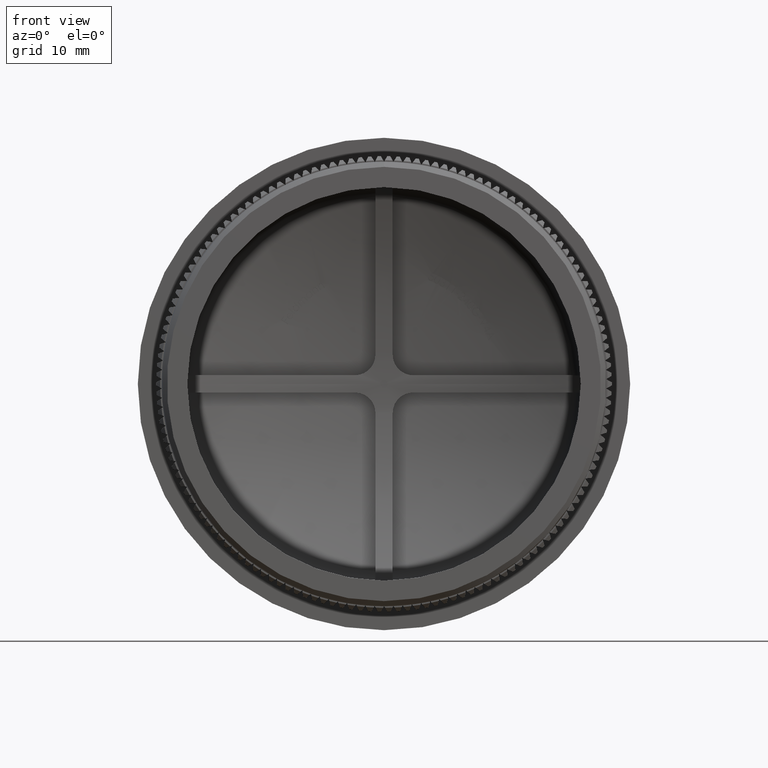
[diagram: clean part render]
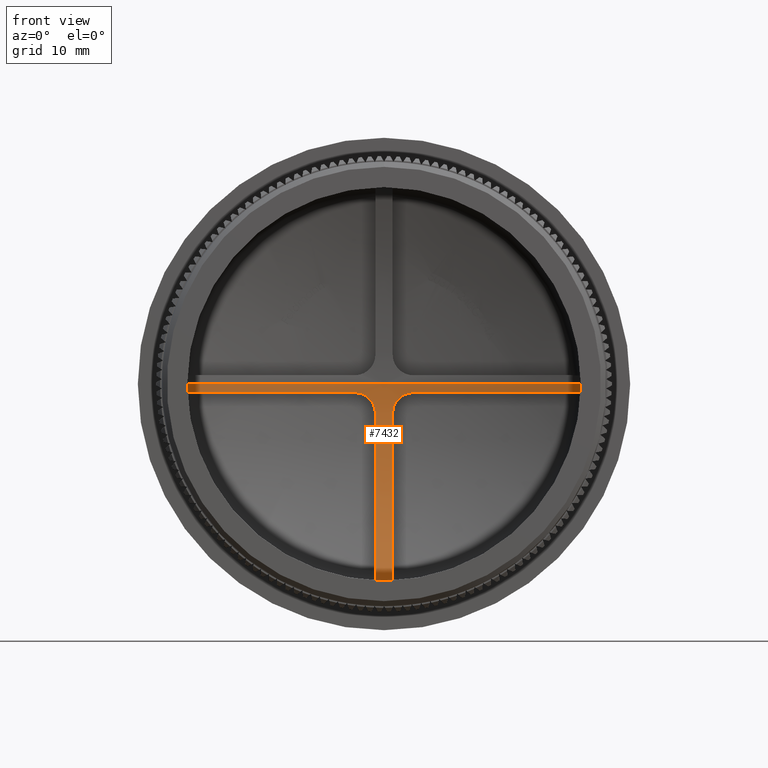
[diagram: same view with one face highlighted and labeled with its STEP entity id]
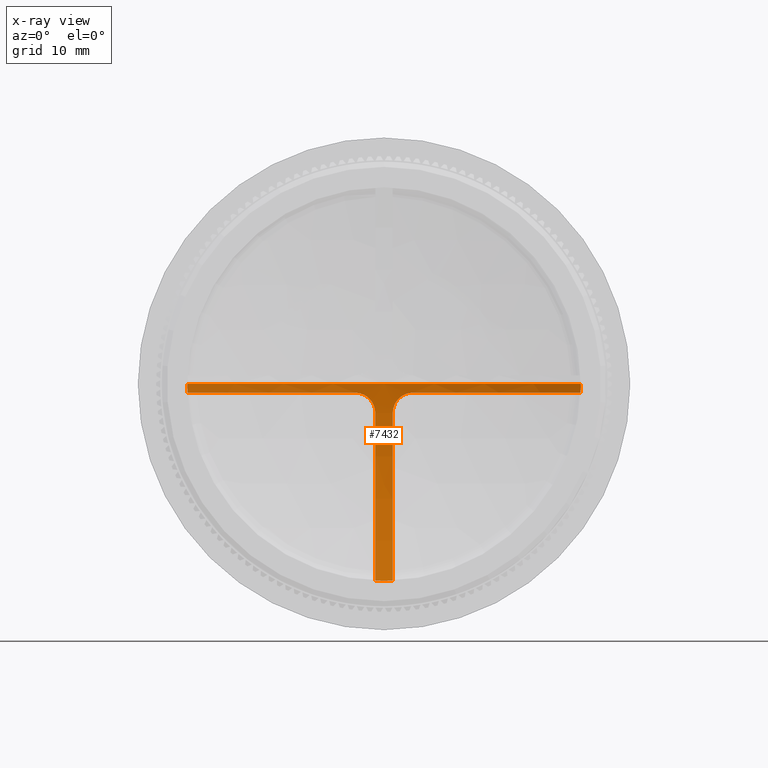
[diagram: x-ray of the same camera — body ghosted, the highlighted face saturated]
A machine part, front view. The second image highlights one B-rep face of the part: STEP entity #7432.
The next image is the same camera in x-ray: the body ghosted, the highlighted face saturated — about 0% of this face is hidden behind the body in this view.
In plain terms, the highlighted spherical surface has radius 46.0764 mm.
Its self-contained STEP definition (entity closure, byte-faithful):
#826 = CARTESIAN_POINT ( 'NONE',  ( 0.8500000000000002000, 16.87391791365100600, -2.849999999999999600 ) ) ;
#1075 = CARTESIAN_POINT ( 'NONE',  ( -0.8499999999999994200, 16.87391791365100600, -2.849999999999999200 ) ) ;
#1250 = CARTESIAN_POINT ( 'NONE',  ( -2.588367781213962300, 16.88933179402046400, -0.8629186428152267900 ) ) ;
#1402 = CARTESIAN_POINT ( 'NONE',  ( -2.333011335065106300, 16.90201252549741200, -0.9135944489061640400 ) ) ;
#1486 = DIRECTION ( 'NONE',  ( -1.000000000000000000, 0.0000000000000000000, 0.0000000000000000000 ) ) ;
#2011 = CARTESIAN_POINT ( 'NONE',  ( -2.206068287032270100, 16.90749834030023600, -0.9519693981760574100 ) ) ;
#2153 = ORIENTED_EDGE ( 'NONE', *, *, #16143, .F. ) ;
#2163 = CARTESIAN_POINT ( 'NONE',  ( -1.251705999032471300, 16.92524607816653100, -1.619731823192323400 ) ) ;
#2287 = CARTESIAN_POINT ( 'NONE',  ( -0.8500000000000014200, 16.89026799087477900, -2.586216975659840300 ) ) ;
#2323 = CARTESIAN_POINT ( 'NONE',  ( -1.631592054119581600, 16.92408516943763500, -1.258596775633193300 ) ) ;
#2332 = AXIS2_PLACEMENT_3D ( 'NONE', #41453, #38130, #7273 ) ;
#3123 = EDGE_LOOP ( 'NONE', ( #23334, #8677, #41161, #15627, #11217, #2153, #27586, #16997, #20508, #8129, #34826, #44591 ) ) ;
#3237 = DIRECTION ( 'NONE',  ( 0.0000000000000000000, 0.0000000000000000000, -1.000000000000000000 ) ) ;
#3243 = CARTESIAN_POINT ( 'NONE',  ( -19.28127329820309700, 12.73310967627990600, -0.8499999999999997600 ) ) ;
#4350 = DIRECTION ( 'NONE',  ( 0.0000000000000000000, 0.0000000000000000000, -1.000000000000000000 ) ) ;
#4357 = CIRCLE ( 'NONE', #21138, 19.29999999999999700 ) ;
#4366 = CARTESIAN_POINT ( 'NONE',  ( 0.8500000000000006400, 16.88209284108035400, -2.718110281586928700 ) ) ;
#4602 = CARTESIAN_POINT ( 'NONE',  ( -0.8500000000000000900, -29.10639209225696100, -1.800015980517790900E-016 ) ) ;
#4868 = EDGE_CURVE ( 'NONE', #30580, #39580, #27491, .T. ) ;
#4939 = CARTESIAN_POINT ( 'NONE',  ( 0.9135944489061647000, 16.90201252549741200, -2.333011335065104900 ) ) ;
#5290 = DIRECTION ( 'NONE',  ( -1.000000000000000000, 0.0000000000000000000, -4.706908051626165200E-018 ) ) ;
#5445 = CIRCLE ( 'NONE', #28983, 46.07639209225696700 ) ;
#5565 = CARTESIAN_POINT ( 'NONE',  ( 0.8500000000000002000, 16.87391791365100600, -2.849999999999999600 ) ) ;
#5700 = CARTESIAN_POINT ( 'NONE',  ( 19.29999999999999700, 12.73310967627991300, -2.363568322354391400E-015 ) ) ;
#5701 = VERTEX_POINT ( 'NONE', #40291 ) ;
#6267 = EDGE_CURVE ( 'NONE', #30862, #9776, #7905, .T. ) ;
#6316 = DIRECTION ( 'NONE',  ( -1.000000000000000000, 0.0000000000000000000, 0.0000000000000000000 ) ) ;
#6786 = DIRECTION ( 'NONE',  ( 0.0000000000000000000, 0.0000000000000000000, -1.000000000000000000 ) ) ;
#7091 = AXIS2_PLACEMENT_3D ( 'NONE', #42317, #21556, #4350 ) ;
#7273 = DIRECTION ( 'NONE',  ( 1.000000000000000000, 0.0000000000000000000, 0.0000000000000000000 ) ) ;
#7432 = ADVANCED_FACE ( 'NONE', ( #10694 ), #25256, .F. ) ;
#7885 = CARTESIAN_POINT ( 'NONE',  ( 1.113564122289354000, 16.91959982699221100, -1.849064144058734100 ) ) ;
#7905 = B_SPLINE_CURVE_WITH_KNOTS ( 'NONE', 3,
 ( #15079, #21991, #1250, #1402, #2011, #9050, #33085, #2323, #36610, #2163, #19565, #9643, #2287, #10352 ),
 .UNSPECIFIED., .F., .F.,
 ( 4, 2, 2, 2, 2, 2, 4 ),
 ( 0.0000000000000000000, 0.0003908182569358285400, 0.0007816365138716570800, 0.001172454770807485800, 0.001563273027743314600, 0.002344909541614971700, 0.003126546055486628300 ),
 .UNSPECIFIED. ) ;
#8129 = ORIENTED_EDGE ( 'NONE', *, *, #42368, .T. ) ;
#8464 = CARTESIAN_POINT ( 'NONE',  ( 0.9519693981760573000, 16.90749834030023300, -2.206068287032267900 ) ) ;
#8601 = CARTESIAN_POINT ( 'NONE',  ( 2.850000000000000100, 16.87391791365100600, -0.8499999999999998700 ) ) ;
#8677 = ORIENTED_EDGE ( 'NONE', *, *, #11410, .T. ) ;
#8964 = CIRCLE ( 'NONE', #40654, 46.06855118450546600 ) ;
#9050 = CARTESIAN_POINT ( 'NONE',  ( -1.963940808817204100, 16.91628598247666600, -1.052204870919325500 ) ) ;
#9643 = CARTESIAN_POINT ( 'NONE',  ( -0.9029516258031554700, 16.90323864854717300, -2.323866490162558800 ) ) ;
#9776 = VERTEX_POINT ( 'NONE', #1075 ) ;
#10352 = CARTESIAN_POINT ( 'NONE',  ( -0.8499999999999994200, 16.87391791365100600, -2.849999999999999200 ) ) ;
#10694 = FACE_OUTER_BOUND ( 'NONE', #3123, .T. ) ;
#11217 = ORIENTED_EDGE ( 'NONE', *, *, #6267, .T. ) ;
#11354 = CARTESIAN_POINT ( 'NONE',  ( 1.258596775633193100, 16.92408516943763200, -1.631592054119579000 ) ) ;
#11410 = EDGE_CURVE ( 'NONE', #42463, #24757, #39482, .T. ) ;
#11810 = AXIS2_PLACEMENT_3D ( 'NONE', #25483, #32358, #36303 ) ;
#12116 = EDGE_CURVE ( 'NONE', #42463, #20731, #5445, .T. ) ;
#12385 = CARTESIAN_POINT ( 'NONE',  ( 1.842828675561848600, 16.92066584029282700, -1.102596278799330000 ) ) ;
#13047 = EDGE_CURVE ( 'NONE', #39886, #39580, #19984, .T. ) ;
#13181 = VERTEX_POINT ( 'NONE', #15505 ) ;
#13566 = CARTESIAN_POINT ( 'NONE',  ( 0.0000000000000000000, 12.73310967627991300, 0.0000000000000000000 ) ) ;
#14795 = CARTESIAN_POINT ( 'NONE',  ( 1.619731823192323400, 16.92524607816652700, -1.251705999032469000 ) ) ;
#14800 = CIRCLE ( 'NONE', #35524, 19.29999999999999700 ) ;
#15079 = CARTESIAN_POINT ( 'NONE',  ( -2.850000000000001900, 16.87391791365100600, -0.8499999999999997600 ) ) ;
#15505 = CARTESIAN_POINT ( 'NONE',  ( 19.28127329820309700, 12.73310967627991300, -0.8499999999999997600 ) ) ;
#15627 = ORIENTED_EDGE ( 'NONE', *, *, #26780, .F. ) ;
#16143 = EDGE_CURVE ( 'NONE', #32222, #9776, #36024, .T. ) ;
#16997 = ORIENTED_EDGE ( 'NONE', *, *, #13047, .T. ) ;
#18493 = DIRECTION ( 'NONE',  ( 1.000000000000000000, 0.0000000000000000000, 2.117665859432695400E-016 ) ) ;
#19414 = B_SPLINE_CURVE_WITH_KNOTS ( 'NONE', 3,
 ( #826, #4366, #28501, #4939, #8464, #38734, #7885, #11354, #35411, #14795, #12385, #22428, #36463, #8601 ),
 .UNSPECIFIED., .F., .F.,
 ( 4, 2, 2, 2, 2, 2, 4 ),
 ( 0.0000000000000000000, 0.0003908182569358287600, 0.0007816365138716575200, 0.001172454770807485800, 0.001563273027743314600, 0.002344909541614971700, 0.003126546055486629200 ),
 .UNSPECIFIED. ) ;
#19565 = CARTESIAN_POINT ( 'NONE',  ( -1.102596278799332600, 16.92066584029282700, -1.842828675561848400 ) ) ;
#19898 = DIRECTION ( 'NONE',  ( -0.0000000000000000000, -0.0000000000000000000, 1.000000000000000000 ) ) ;
#19984 = CIRCLE ( 'NONE', #7091, 19.29999999999999700 ) ;
#20041 = CARTESIAN_POINT ( 'NONE',  ( -2.821365304602045700E-015, 16.97000000000000600, 0.0000000000000000000 ) ) ;
#20508 = ORIENTED_EDGE ( 'NONE', *, *, #4868, .F. ) ;
#20731 = VERTEX_POINT ( 'NONE', #5700 ) ;
#20741 = AXIS2_PLACEMENT_3D ( 'NONE', #42835, #22208, #1486 ) ;
#20854 = VERTEX_POINT ( 'NONE', #3243 ) ;
#21138 = AXIS2_PLACEMENT_3D ( 'NONE', #42863, #29019, #38977 ) ;
#21556 = DIRECTION ( 'NONE',  ( -0.0000000000000000000, -1.000000000000000000, -0.0000000000000000000 ) ) ;
#21991 = CARTESIAN_POINT ( 'NONE',  ( -2.718110281586929100, 16.88209284108035000, -0.8499999999999997600 ) ) ;
#22208 = DIRECTION ( 'NONE',  ( -0.0000000000000000000, -0.0000000000000000000, -1.000000000000000000 ) ) ;
#22428 = CARTESIAN_POINT ( 'NONE',  ( 2.323866490162559200, 16.90323864854717300, -0.9029516258031525800 ) ) ;
#22471 = DIRECTION ( 'NONE',  ( -5.882405165090820600E-018, -0.0000000000000000000, 1.000000000000000000 ) ) ;
#22510 = DIRECTION ( 'NONE',  ( -1.000000000000000000, 0.0000000000000000000, 1.224646799147353200E-016 ) ) ;
#23334 = ORIENTED_EDGE ( 'NONE', *, *, #12116, .F. ) ;
#24266 = DIRECTION ( 'NONE',  ( -0.0000000000000000000, -1.000000000000000000, -0.0000000000000000000 ) ) ;
#24587 = AXIS2_PLACEMENT_3D ( 'NONE', #30873, #19898, #6316 ) ;
#24757 = VERTEX_POINT ( 'NONE', #33234 ) ;
#25256 = SPHERICAL_SURFACE ( 'NONE', #20741, 46.07639209225696700 ) ;
#25483 = CARTESIAN_POINT ( 'NONE',  ( 0.8499999999999996400, -29.10639209225696100, 1.700015092711246200E-016 ) ) ;
#26780 = EDGE_CURVE ( 'NONE', #30862, #20854, #29731, .T. ) ;
#27491 = CIRCLE ( 'NONE', #11810, 46.06855118450546600 ) ;
#27586 = ORIENTED_EDGE ( 'NONE', *, *, #27951, .T. ) ;
#27951 = EDGE_CURVE ( 'NONE', #32222, #39886, #4357, .T. ) ;
#28501 = CARTESIAN_POINT ( 'NONE',  ( 0.8629186428152273400, 16.88933179402046000, -2.588367781213959200 ) ) ;
#28983 = AXIS2_PLACEMENT_3D ( 'NONE', #39381, #39681, #22510 ) ;
#29019 = DIRECTION ( 'NONE',  ( -0.0000000000000000000, -1.000000000000000000, -0.0000000000000000000 ) ) ;
#29731 = CIRCLE ( 'NONE', #24587, 46.06855118450546600 ) ;
#30580 = VERTEX_POINT ( 'NONE', #5565 ) ;
#30775 = EDGE_CURVE ( 'NONE', #13181, #20731, #32771, .T. ) ;
#30862 = VERTEX_POINT ( 'NONE', #41419 ) ;
#30873 = CARTESIAN_POINT ( 'NONE',  ( 0.0000000000000000000, -29.10639209225696100, -0.8499999999999997600 ) ) ;
#32222 = VERTEX_POINT ( 'NONE', #33556 ) ;
#32358 = DIRECTION ( 'NONE',  ( -1.000000000000000000, -0.0000000000000000000, -2.000017756130879000E-016 ) ) ;
#32771 = CIRCLE ( 'NONE', #35994, 19.29999999999999700 ) ;
#33085 = CARTESIAN_POINT ( 'NONE',  ( -1.849064144058736800, 16.91959982699221900, -1.113564122289353800 ) ) ;
#33234 = CARTESIAN_POINT ( 'NONE',  ( -19.29999999999999700, 12.73310967627991300, 0.0000000000000000000 ) ) ;
#33556 = CARTESIAN_POINT ( 'NONE',  ( -0.8499999999999959800, 12.73310967627991300, -19.28127329820309700 ) ) ;
#34826 = ORIENTED_EDGE ( 'NONE', *, *, #35305, .F. ) ;
#35305 = EDGE_CURVE ( 'NONE', #13181, #5701, #8964, .T. ) ;
#35411 = CARTESIAN_POINT ( 'NONE',  ( 1.343036529158985000, 16.92523351802993000, -1.528604157472325500 ) ) ;
#35524 = AXIS2_PLACEMENT_3D ( 'NONE', #13566, #37346, #3237 ) ;
#35994 = AXIS2_PLACEMENT_3D ( 'NONE', #41115, #24266, #6786 ) ;
#36024 = CIRCLE ( 'NONE', #41769, 46.06855118450546600 ) ;
#36303 = DIRECTION ( 'NONE',  ( 2.000435921941120200E-016, 3.539594854822876200E-015, -1.000000000000000000 ) ) ;
#36463 = CARTESIAN_POINT ( 'NONE',  ( 2.586216975659840300, 16.89026799087478600, -0.8499999999999994200 ) ) ;
#36610 = CARTESIAN_POINT ( 'NONE',  ( -1.528604157472327900, 16.92523351802992700, -1.343036529158984300 ) ) ;
#36934 = EDGE_CURVE ( 'NONE', #24757, #20854, #14800, .T. ) ;
#37346 = DIRECTION ( 'NONE',  ( -0.0000000000000000000, -1.000000000000000000, -0.0000000000000000000 ) ) ;
#38130 = DIRECTION ( 'NONE',  ( -0.0000000000000000000, 0.0000000000000000000, 1.000000000000000000 ) ) ;
#38734 = CARTESIAN_POINT ( 'NONE',  ( 1.052204870919325000, 16.91628598247665800, -1.963940808817201500 ) ) ;
#38977 = DIRECTION ( 'NONE',  ( 0.0000000000000000000, 0.0000000000000000000, -1.000000000000000000 ) ) ;
#39381 = CARTESIAN_POINT ( 'NONE',  ( 0.0000000000000000000, -29.10639209225696100, 0.0000000000000000000 ) ) ;
#39482 = CIRCLE ( 'NONE', #2332, 46.07639209225696700 ) ;
#39580 = VERTEX_POINT ( 'NONE', #40698 ) ;
#39681 = DIRECTION ( 'NONE',  ( -1.224646799147353200E-016, 0.0000000000000000000, -1.000000000000000000 ) ) ;
#39886 = VERTEX_POINT ( 'NONE', #43224 ) ;
#40291 = CARTESIAN_POINT ( 'NONE',  ( 2.850000000000000100, 16.87391791365100600, -0.8499999999999998700 ) ) ;
#40654 = AXIS2_PLACEMENT_3D ( 'NONE', #43249, #22471, #5290 ) ;
#40698 = CARTESIAN_POINT ( 'NONE',  ( 0.8500000000000035300, 12.73310967627991300, -19.28127329820309700 ) ) ;
#41115 = CARTESIAN_POINT ( 'NONE',  ( 0.0000000000000000000, 12.73310967627991300, 0.0000000000000000000 ) ) ;
#41161 = ORIENTED_EDGE ( 'NONE', *, *, #36934, .T. ) ;
#41419 = CARTESIAN_POINT ( 'NONE',  ( -2.850000000000001900, 16.87391791365100600, -0.8499999999999997600 ) ) ;
#41453 = CARTESIAN_POINT ( 'NONE',  ( 0.0000000000000000000, -29.10639209225696100, 0.0000000000000000000 ) ) ;
#41769 = AXIS2_PLACEMENT_3D ( 'NONE', #4602, #18493, #41994 ) ;
#41994 = DIRECTION ( 'NONE',  ( -2.118108623231774200E-016, 0.0000000000000000000, 1.000000000000000000 ) ) ;
#42317 = CARTESIAN_POINT ( 'NONE',  ( 0.0000000000000000000, 12.73310967627991300, 0.0000000000000000000 ) ) ;
#42368 = EDGE_CURVE ( 'NONE', #30580, #5701, #19414, .T. ) ;
#42463 = VERTEX_POINT ( 'NONE', #20041 ) ;
#42835 = CARTESIAN_POINT ( 'NONE',  ( 0.0000000000000000000, -29.10639209225696100, 0.0000000000000000000 ) ) ;
#42863 = CARTESIAN_POINT ( 'NONE',  ( 0.0000000000000000000, 12.73310967627991300, 0.0000000000000000000 ) ) ;
#43224 = CARTESIAN_POINT ( 'NONE',  ( 0.0000000000000000000, 12.73310967627991300, -19.29999999999999700 ) ) ;
#43249 = CARTESIAN_POINT ( 'NONE',  ( 5.000044390327195400E-018, -29.10639209225696100, -0.8499999999999998700 ) ) ;
#44591 = ORIENTED_EDGE ( 'NONE', *, *, #30775, .T. ) ;